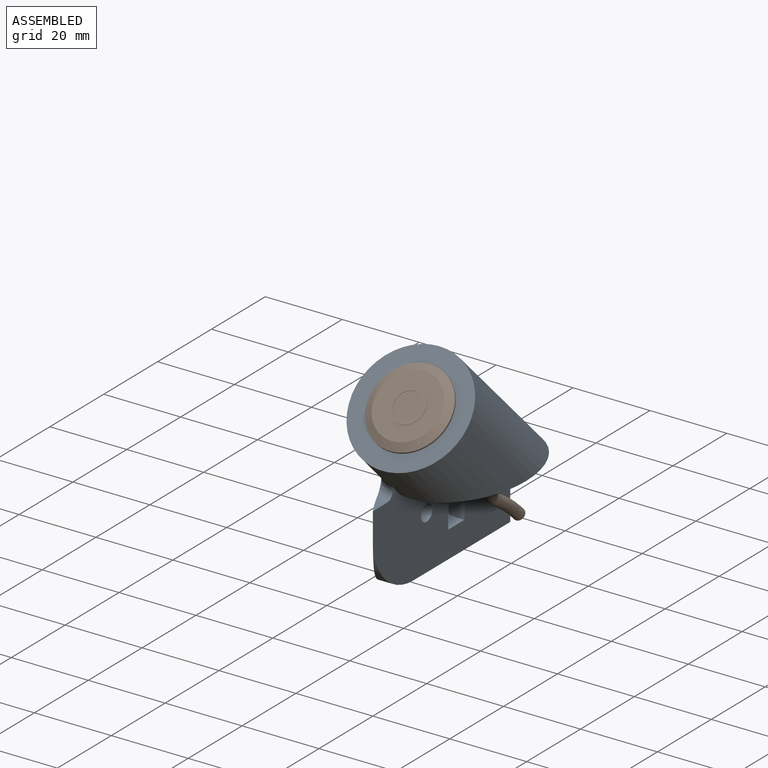
[diagram: assembled view]
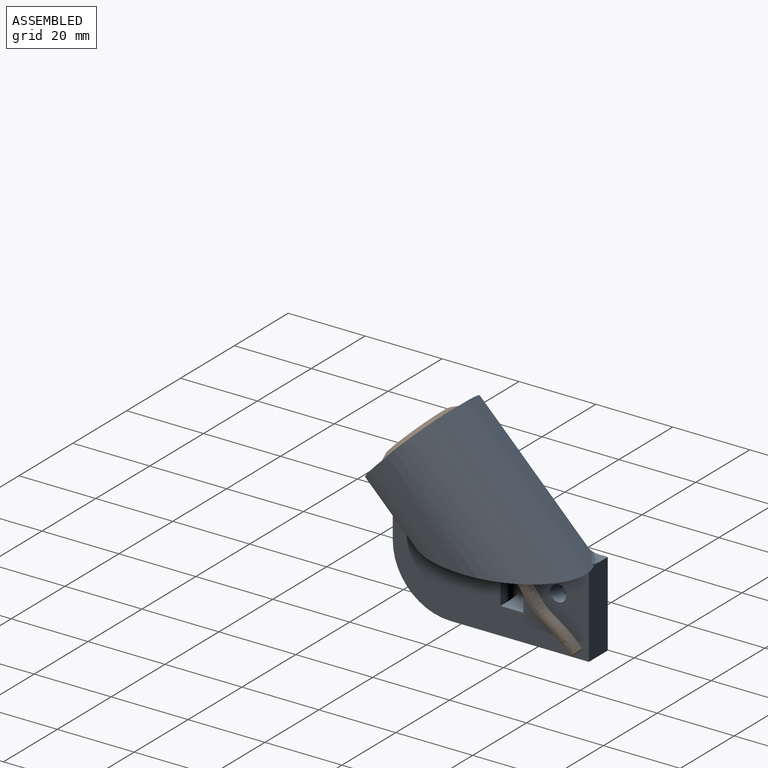
[diagram: assembled view, second angle]
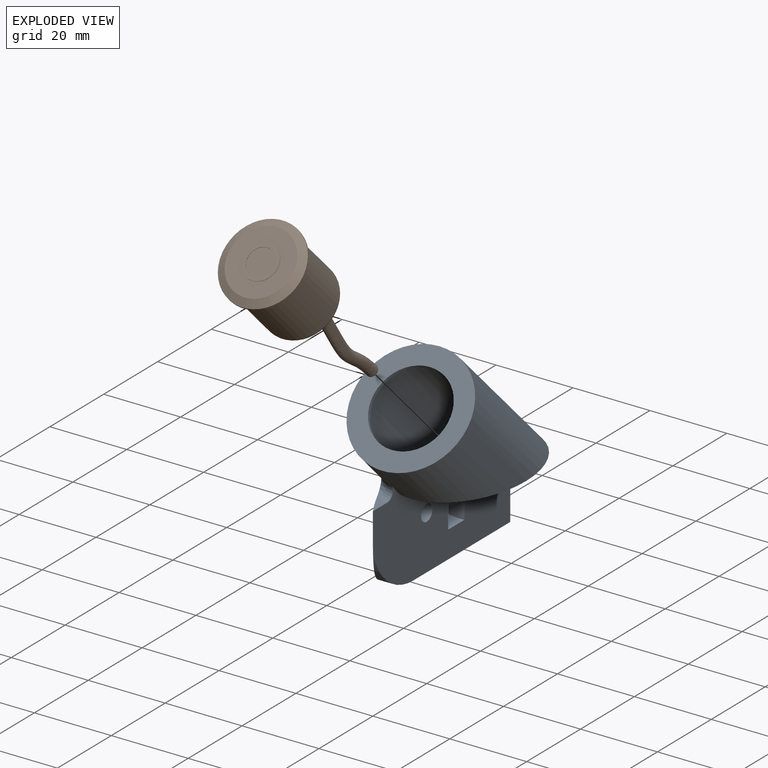
[diagram: exploded view]
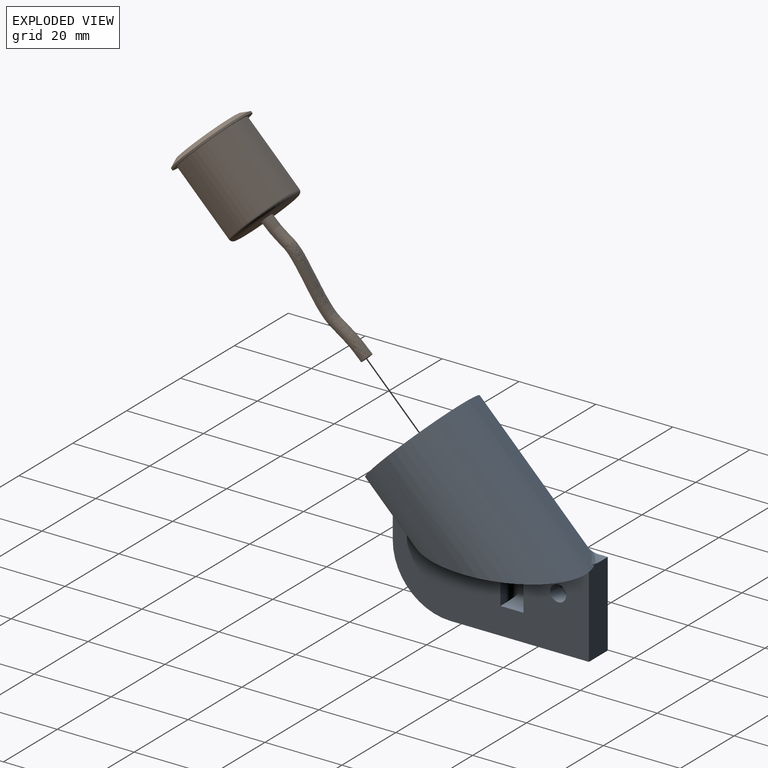
[diagram: exploded view, second angle]
ASSEMBLY  parts=2 mates=2
PART A: 47 faces, bbox 31.2x54.4x55 mm
  f0: cylinder r=78.21mm len=25.2mm, axis (0,0,1), area 322.1mm2, adj f1,f5,f8,f9,f12,f29,f46
  f1: plane 36x7mm, normal (0,0,-1), area 252mm2, adj f0,f5,f7,f8,f46
  f2: cylinder r=2.1mm len=4.2mm, axis (1,0,0), area 48.8mm2, adj f5,f39
  f3: cylinder r=2.1mm len=4.2mm, axis (1,0,0), area 48.8mm2, adj f5,f32
  f4: plane 31.84x8.21mm, normal (0,0,1), area 123.3mm2, adj f5,f8,f13,f21,f23,f25,f27,f28
  f5: plane 51x25.39mm, normal (1,0,0), area 962mm2, adj f0,f1,f2,f3,f4,f7,f9,f11
  f6: plane 3.14x2.56mm, normal (0,0,1), area 3.7mm2, adj f7,f8,f30
  f7: plane 22.8x7.17mm, normal (0,1,0), area 154.2mm2, adj f1,f5,f6,f8,f11,f12,f30
  f8: plane 35.93x24.24mm, normal (-1,0,0), area 701.2mm2, adj f0,f1,f4,f6,f7,f10,f12,f13
  f9: plane 6.88x3.66mm, normal (0,0,1), area 9.9mm2, adj f0,f5,f29
  f10: plane 32.72x6.09mm, normal (0,0,-1), area 73.4mm2, adj f8,f12,f13
  f11: plane 42.43x20mm, normal (0,0,-1), area 175mm2, adj f5,f7,f12,f13
  f12: cylinder r=15mm len=53.06mm, axis (0,-0.71,0.71), area 2785mm2, adj f0,f5,f7,f8,f10,f11,f16,f29
  f13: cylinder r=12.5mm len=47.02mm, axis (0,-0.71,0.71), area 2247.1mm2, adj f4,f5,f8,f10,f11,f14,f31
  f14: plane 25x17.68mm, normal (0,0.71,-0.71), area 176.7mm2, adj f13,f15
  f15: cylinder r=10mm len=20mm, axis (0,0.71,-0.71), area 62.8mm2, adj f14,f16
  f16: plane 30x21.21mm, normal (0,-0.71,0.71), area 392.7mm2, adj f12,f15
  f17: plane 13x2mm, normal (0,1,0), area 26mm2, adj f5,f18,f26,f28
  f18: plane 6x2mm, normal (0,0,1), area 12mm2, adj f5,f17,f19,f24
  f19: plane 13x2mm, normal (0,-1,0), area 26mm2, adj f5,f18,f21,f22
  f20: plane 11x2mm, normal (1,0,0), area 22mm2, adj f22,f24,f25,f26
  f21: cylinder r=2mm len=2mm, axis (1,0,0), area 6.3mm2, adj f4,f5,f19,f23
  f22: cylinder r=2mm len=13mm, axis (0,0,1), area 37.7mm2, adj f19,f20,f23,f24
  f23: torus R=4mm, axis (0,0,1), area 13.5mm2, adj f4,f21,f22,f25
  f24: cylinder r=2mm len=6mm, axis (0,1,0), area 12.6mm2, adj f18,f20,f22,f26
  f25: cylinder r=2mm len=2mm, axis (0,-1,0), area 6.3mm2, adj f4,f20,f23,f27
  f26: cylinder r=2mm len=13mm, axis (0,0,-1), area 37.7mm2, adj f17,f20,f24,f27
  f27: torus R=4mm, axis (0,0,1), area 13.5mm2, adj f4,f25,f26,f28
  f28: cylinder r=2mm len=2mm, axis (-1,0,0), area 6.3mm2, adj f4,f5,f17,f27
  f29: bspline ~7.24x5.36mm, area 25.7mm2, adj f0,f5,f9,f12
  f30: bspline ~7.83x6.51mm, area 11.4mm2, adj f6,f7,f8,f12
  f31: bspline ~13.76x11.26mm, area 32.9mm2, adj f4,f5,f8,f13
  f32: plane 8.31x7.2mm, normal (-1,0,0), area 31mm2, adj f3,f33,f34,f35,f36,f37,f38
  f33: plane 3.6x3.3mm, normal (0,-0.5,0.87), area 13.7mm2, adj f8,f32,f34,f38
  f34: plane 3.6x3.3mm, normal (0,0.5,0.87), area 13.7mm2, adj f8,f32,f33,f35
  f35: plane 4.16x3.3mm, normal (0,1,0), area 13.7mm2, adj f8,f32,f34,f36
  f36: plane 3.6x3.3mm, normal (0,0.5,-0.87), area 13.7mm2, adj f8,f32,f35,f37
  f37: plane 3.6x3.3mm, normal (0,-0.5,-0.87), area 13.7mm2, adj f8,f32,f36,f38
  f38: plane 4.16x3.3mm, normal (0,-1,0), area 13.7mm2, adj f8,f32,f33,f37
  f39: plane 8.31x7.2mm, normal (-1,0,0), area 31mm2, adj f2,f40,f41,f42,f43,f44,f45
  f40: plane 3.6x3.3mm, normal (0,-0.5,0.87), area 13.7mm2, adj f8,f39,f41,f45
  f41: plane 3.6x3.3mm, normal (0,0.5,0.87), area 13.7mm2, adj f8,f39,f40,f42
  f42: plane 4.16x3.3mm, normal (0,1,0), area 13.7mm2, adj f8,f39,f41,f43
  f43: plane 3.6x3.3mm, normal (0,0.5,-0.87), area 13.7mm2, adj f8,f39,f42,f44
  f44: plane 3.6x3.3mm, normal (0,-0.5,-0.87), area 13.7mm2, adj f8,f39,f43,f45
  f45: plane 4.16x3.3mm, normal (0,-1,0), area 13.7mm2, adj f8,f39,f40,f44
  f46: cylinder r=15mm len=15mm, axis (1,0,0), area 81.7mm2, adj f0,f1,f5
PART B: 13 faces, bbox 21x21x58.4 mm
  f0: cylinder r=9.25mm len=19mm, axis (0,0,-1), area 1104.3mm2, adj f4,f12
  f1: plane 16.5x16.5mm, normal (0,0,1), area 206.8mm2, adj f11,f12
  f2: cylinder r=10.5mm len=21mm, axis (0,0,1), area 33mm2, adj f4,f5
  f3: plane 17x17mm, normal (0,0,-1), area 163.4mm2, adj f5,f7
  f4: plane 21x21mm, normal (0,0,1), area 77.6mm2, adj f0,f2
  f5: cone r=8.5mm half-angle=63.4deg, axis (0,0,1), area 133.5mm2, adj f2,f3
  f6: cylinder r=3.5mm len=7mm, axis (0,0,1), area 2.2mm2, adj f8,f9
  f7: cylinder r=4.5mm len=9mm, axis (0,0,1), area 2.8mm2, adj f3,f8
  f8: plane 9x9mm, normal (0,0,-1), area 25.1mm2, adj f6,f7
  f9: plane 7x7mm, normal (0,0,-1), area 38.5mm2, adj f6
  f10: plane 3x3mm, normal (0,0,1), area 7.1mm2, adj f11
  f11: bspline ~36.78x8.41mm, area 350.1mm2, adj f1,f10
  f12: torus R=8.25mm, axis (0,0,1), area 87.7mm2, adj f0,f1
PLACE A t=(-30.63,34.78,19.55)mm fixed
PLACE B rot(axis=(-1,0,0),135deg) t=(-27.63,-6.41,40.74)mm
MATE cylindrical A.f15 <-> B.f0  axis (0,-0.71,0.71) through (-27.63,-5.71,40.04)mm
MATE planar B.f2 <-> A.f15  axis (0,0.71,-0.71) through (-27.63,-6.41,40.74)mm
